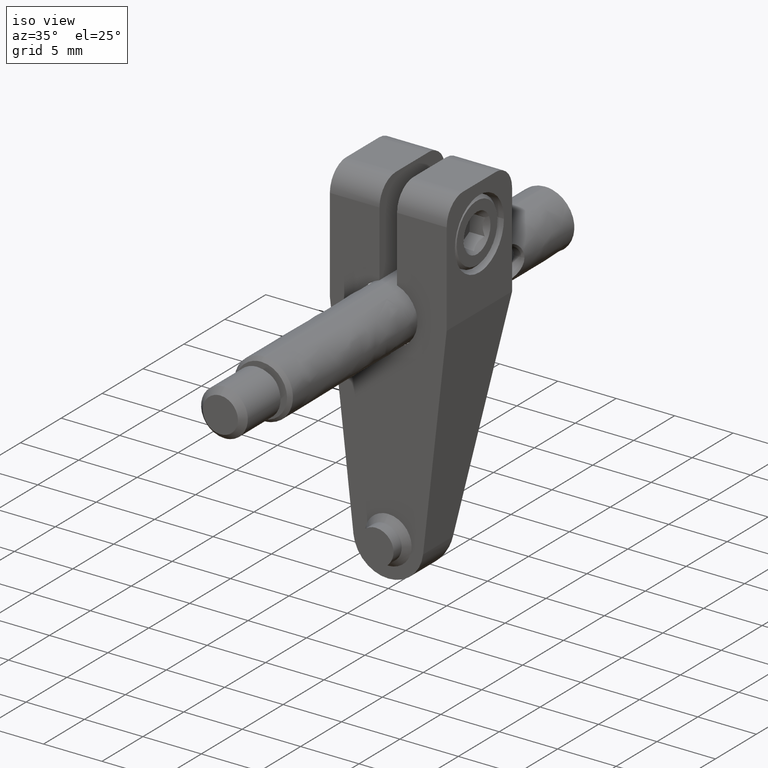
[diagram: clean part render]
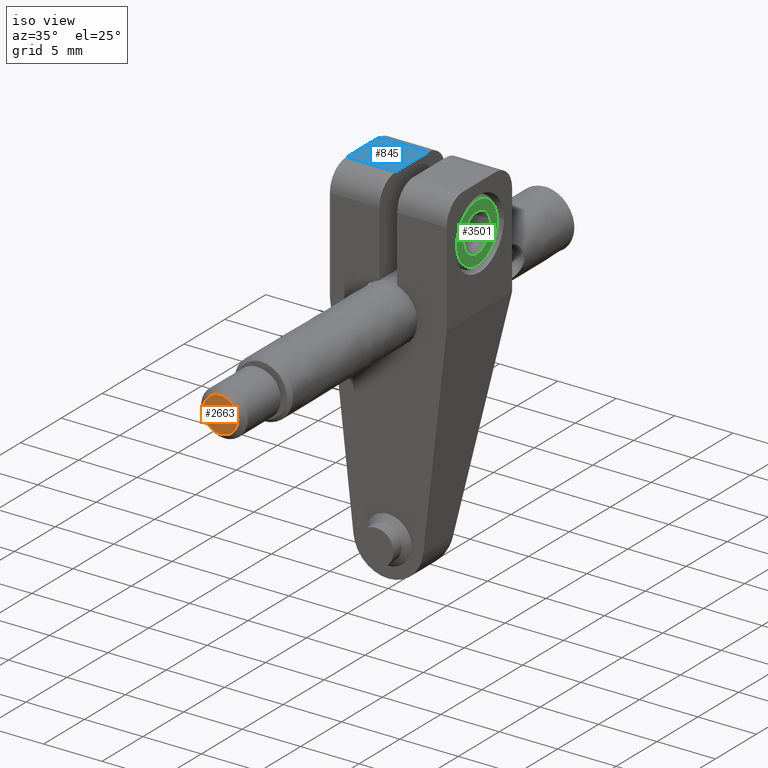
[diagram: same view with three faces highlighted in distinct colors, each labeled with its STEP entity id]
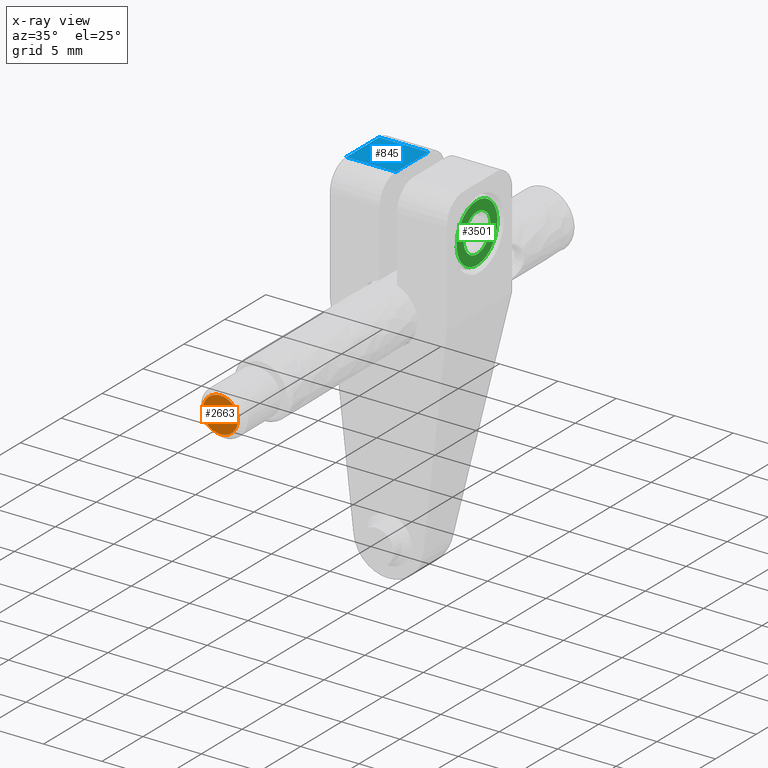
[diagram: x-ray of the same camera — body ghosted, the three highlighted faces saturated]
A machine part, iso view with three faces highlighted in distinct colors.
The next image is the same camera in x-ray (body ghosted, the three faces saturated) — at least one of them is partly hidden behind the body in this view.
Their STEP definitions:

[orange] entity #2663 — the highlighted face is a freeform B-spline surface patch.
#437 = CARTESIAN_POINT ( 'NONE',  ( 2.436809988642660241E-16, -20.52094755358395162, 1.500000000000000000 ) ) ;
#649 = CARTESIAN_POINT ( 'NONE',  ( 1.801199999999999912, -20.52094755358395162, -1.801199999999999912 ) ) ;
#1273 =( BOUNDED_CURVE ( )  B_SPLINE_CURVE ( 2, ( #6511, #2603, #5407, #2669, #4764 ),
 .UNSPECIFIED., .F., .F. ) 
 B_SPLINE_CURVE_WITH_KNOTS ( ( 3, 2, 3 ),
 ( 0.000000000000000000, 0.5000000000000008882, 1.000000000000000000 ),
 .UNSPECIFIED. ) 
 CURVE ( )  GEOMETRIC_REPRESENTATION_ITEM ( )  RATIONAL_B_SPLINE_CURVE ( ( 1.000000000000001998, 0.7071067811865457964, 1.000000000000000000, 0.7071067811865501263, 0.9999999999999978906 ) ) 
 REPRESENTATION_ITEM ( '' )  );
#1349 = ORIENTED_EDGE ( 'NONE', *, *, #7058, .F. ) ;
#2072 = CARTESIAN_POINT ( 'NONE',  ( -6.112043250755600184E-16, -20.52094755358395162, -1.500000000000000000 ) ) ;
#2073 = ORIENTED_EDGE ( 'NONE', *, *, #3592, .F. ) ;
#2111 = CARTESIAN_POINT ( 'NONE',  ( -1.499999999999998668, -20.52094755358396583, -2.144106034113575115E-15 ) ) ;
#2171 = VERTEX_POINT ( 'NONE', #3657 ) ;
#2175 =( BOUNDED_CURVE ( )  B_SPLINE_CURVE ( 2, ( #2718, #3221, #2111, #4913, #437 ),
 .UNSPECIFIED., .F., .T. ) 
 B_SPLINE_CURVE_WITH_KNOTS ( ( 3, 2, 3 ),
 ( 0.000000000000000000, 0.5000000000000008882, 1.000000000000000000 ),
 .UNSPECIFIED. ) 
 CURVE ( )  GEOMETRIC_REPRESENTATION_ITEM ( )  RATIONAL_B_SPLINE_CURVE ( ( 1.000000000000001998, 0.7071067811865457964, 1.000000000000000000, 0.7071067811865501263, 0.9999999999999978906 ) ) 
 REPRESENTATION_ITEM ( '' )  );
#2367 = CARTESIAN_POINT ( 'NONE',  ( -1.801199999999999912, -20.52094755358395162, 1.801199999999999912 ) ) ;
#2603 = CARTESIAN_POINT ( 'NONE',  ( 1.500000000000001110, -20.52094755358395872, 1.500000000000010214 ) ) ;
#2663 = ADVANCED_FACE ( 'NONE', ( #5142 ), #6440, .T. ) ;
#2669 = CARTESIAN_POINT ( 'NONE',  ( 1.499999999999996003, -20.52094755358396228, -1.499999999999986233 ) ) ;
#2718 = CARTESIAN_POINT ( 'NONE',  ( -6.112043250755600184E-16, -20.52094755358395162, -1.500000000000000000 ) ) ;
#2996 = EDGE_LOOP ( 'NONE', ( #1349, #2073 ) ) ;
#3221 = CARTESIAN_POINT ( 'NONE',  ( -1.500000000000004219, -20.52094755358395517, -1.500000000000020428 ) ) ;
#3592 = EDGE_CURVE ( 'NONE', #6635, #2171, #2175, .T. ) ;
#3657 = CARTESIAN_POINT ( 'NONE',  ( 2.436809988642660241E-16, -20.52094755358395162, 1.500000000000000000 ) ) ;
#4764 = CARTESIAN_POINT ( 'NONE',  ( -6.112043250755600184E-16, -20.52094755358395162, -1.500000000000000000 ) ) ;
#4913 = CARTESIAN_POINT ( 'NONE',  ( -1.499999999999999334, -20.52094755358395517, 1.499999999999982681 ) ) ;
#5142 = FACE_OUTER_BOUND ( 'NONE', #2996, .T. ) ;
#5179 = CARTESIAN_POINT ( 'NONE',  ( -1.801199999999999912, -20.52094755358395162, -1.801199999999999912 ) ) ;
#5407 = CARTESIAN_POINT ( 'NONE',  ( 1.499999999999995337, -20.52094755358396938, -2.775912716532012135E-15 ) ) ;
#5715 = CARTESIAN_POINT ( 'NONE',  ( 1.801199999999999912, -20.52094755358395162, 1.801199999999999912 ) ) ;
#6440 = B_SPLINE_SURFACE_WITH_KNOTS ( 'NONE', 1, 1, ( 
 ( #649, #5179 ),
 ( #5715, #2367 ) ),
 .UNSPECIFIED., .F., .F., .F.,
 ( 2, 2 ),
 ( 2, 2 ),
 ( -1.801199999999999912, 1.801199999999999912 ),
 ( -1.801199999999999912, 1.801199999999999912 ),
 .UNSPECIFIED. ) ;
#6511 = CARTESIAN_POINT ( 'NONE',  ( 2.436809988642660241E-16, -20.52094755358395162, 1.500000000000000000 ) ) ;
#6635 = VERTEX_POINT ( 'NONE', #2072 ) ;
#7058 = EDGE_CURVE ( 'NONE', #2171, #6635, #1273, .T. ) ;

[blue] entity #845 — the highlighted face is a freeform B-spline surface patch.
#36 = CARTESIAN_POINT ( 'NONE',  ( -0.7500000000000139888, 6.000000000000000000, 10.00000000000000000 ) ) ;
#242 = CARTESIAN_POINT ( 'NONE',  ( -5.426200000000060086, 6.401200000000000223, 10.00000000000000000 ) ) ;
#279 = CARTESIAN_POINT ( 'NONE',  ( -0.3238000000000090250, 1.598799999999999999, 10.00000000000000000 ) ) ;
#304 = EDGE_CURVE ( 'NONE', #5234, #2661, #2074, .T. ) ;
#394 = EDGE_LOOP ( 'NONE', ( #5213, #3172, #982, #6271 ) ) ;
#818 = CARTESIAN_POINT ( 'NONE',  ( -5.426200000000060086, 1.598799999999999999, 10.00000000000000000 ) ) ;
#845 = ADVANCED_FACE ( 'NONE', ( #2887 ), #6049, .T. ) ;
#982 = ORIENTED_EDGE ( 'NONE', *, *, #1148, .T. ) ;
#1070 = CARTESIAN_POINT ( 'NONE',  ( -5.000000000000000000, 2.000000000000000000, 10.00000000000000000 ) ) ;
#1148 = EDGE_CURVE ( 'NONE', #4755, #2661, #4831, .T. ) ;
#1328 = CARTESIAN_POINT ( 'NONE',  ( -0.7500000000000139888, 2.000000000000000000, 10.00000000000000000 ) ) ;
#1449 = VERTEX_POINT ( 'NONE', #3756 ) ;
#1902 = CARTESIAN_POINT ( 'NONE',  ( -0.7500000000000139888, 2.000000000000000000, 10.00000000000000000 ) ) ;
#2048 = CARTESIAN_POINT ( 'NONE',  ( -5.000000000000000000, 2.000000000000000000, 10.00000000000000000 ) ) ;
#2074 = B_SPLINE_CURVE_WITH_KNOTS ( 'NONE', 1,
 ( #6782, #1328 ),
 .UNSPECIFIED., .F., .F.,
 ( 2, 2 ),
 ( 0.000000000000000000, 1.000000000000000000 ),
 .UNSPECIFIED. ) ;
#2244 = CARTESIAN_POINT ( 'NONE',  ( -5.000000000000000000, 6.000000000000000000, 10.00000000000000000 ) ) ;
#2661 = VERTEX_POINT ( 'NONE', #1902 ) ;
#2740 = CARTESIAN_POINT ( 'NONE',  ( -5.000000000000000000, 6.000000000000000000, 10.00000000000000000 ) ) ;
#2887 = FACE_OUTER_BOUND ( 'NONE', #394, .T. ) ;
#2976 = EDGE_CURVE ( 'NONE', #1449, #5234, #7016, .T. ) ;
#3172 = ORIENTED_EDGE ( 'NONE', *, *, #6020, .F. ) ;
#3756 = CARTESIAN_POINT ( 'NONE',  ( -5.000000000000000000, 6.000000000000000000, 10.00000000000000000 ) ) ;
#4297 = CARTESIAN_POINT ( 'NONE',  ( -0.7500000000000139888, 2.000000000000000000, 10.00000000000000000 ) ) ;
#4755 = VERTEX_POINT ( 'NONE', #2048 ) ;
#4831 = B_SPLINE_CURVE_WITH_KNOTS ( 'NONE', 1,
 ( #1070, #4297 ),
 .UNSPECIFIED., .F., .F.,
 ( 2, 2 ),
 ( 0.000000000000000000, 1.000000000000000000 ),
 .UNSPECIFIED. ) ;
#5165 = CARTESIAN_POINT ( 'NONE',  ( -0.3238000000000090250, 6.401200000000000223, 10.00000000000000000 ) ) ;
#5213 = ORIENTED_EDGE ( 'NONE', *, *, #2976, .F. ) ;
#5234 = VERTEX_POINT ( 'NONE', #36 ) ;
#6020 = EDGE_CURVE ( 'NONE', #4755, #1449, #7099, .T. ) ;
#6049 = B_SPLINE_SURFACE_WITH_KNOTS ( 'NONE', 1, 1, ( 
 ( #279, #818 ),
 ( #5165, #242 ) ),
 .UNSPECIFIED., .F., .F., .F.,
 ( 2, 2 ),
 ( 2, 2 ),
 ( -6.401200000000000223, -1.598799999999999999 ),
 ( 5.323800000000060706, 10.42619999999999969 ),
 .UNSPECIFIED. ) ;
#6271 = ORIENTED_EDGE ( 'NONE', *, *, #304, .F. ) ;
#6558 = CARTESIAN_POINT ( 'NONE',  ( -0.7500000000000139888, 6.000000000000000000, 10.00000000000000000 ) ) ;
#6583 = CARTESIAN_POINT ( 'NONE',  ( -5.000000000000000000, 2.000000000000000000, 10.00000000000000000 ) ) ;
#6782 = CARTESIAN_POINT ( 'NONE',  ( -0.7500000000000139888, 6.000000000000000000, 10.00000000000000000 ) ) ;
#7016 = B_SPLINE_CURVE_WITH_KNOTS ( 'NONE', 1,
 ( #2244, #6558 ),
 .UNSPECIFIED., .F., .F.,
 ( 2, 2 ),
 ( 0.000000000000000000, 1.000000000000000000 ),
 .UNSPECIFIED. ) ;
#7099 = B_SPLINE_CURVE_WITH_KNOTS ( 'NONE', 1,
 ( #6583, #2740 ),
 .UNSPECIFIED., .F., .F.,
 ( 2, 2 ),
 ( 0.000000000000000000, 1.000000000000000000 ),
 .UNSPECIFIED. ) ;

[green] entity #3501 — the highlighted face is a freeform B-spline surface patch.
#9 = CARTESIAN_POINT ( 'NONE',  ( 4.800000000000000711, 3.666826948477658110, 7.610881925276487436 ) ) ;
#24 = CARTESIAN_POINT ( 'NONE',  ( 4.799999999999998934, 5.779940145775683824, 4.243585706670350177 ) ) ;
#35 = EDGE_LOOP ( 'NONE', ( #4209, #65, #1256, #7075 ) ) ;
#46 = CARTESIAN_POINT ( 'NONE',  ( 4.799999999999998046, 5.512175093918890489, 6.651868507934762142 ) ) ;
#65 = ORIENTED_EDGE ( 'NONE', *, *, #1976, .T. ) ;
#81 = CARTESIAN_POINT ( 'NONE',  ( 4.799999999999998934, 5.459749273562041871, 5.229910300414363888 ) ) ;
#108 = CARTESIAN_POINT ( 'NONE',  ( 4.799999999999999822, 2.243582201981664692, 4.220062948948326564 ) ) ;
#205 = CARTESIAN_POINT ( 'NONE',  ( 4.800000000000000711, 5.847551506402488997, 4.315665281229628114 ) ) ;
#241 = CARTESIAN_POINT ( 'NONE',  ( 4.799999999999998934, 3.150051579219033115, 8.372479841574403281 ) ) ;
#311 = CARTESIAN_POINT ( 'NONE',  ( 4.800000000000000711, 6.490926576614874044, 6.213723961470629220 ) ) ;
#363 = VERTEX_POINT ( 'NONE', #5673 ) ;
#512 = CARTESIAN_POINT ( 'NONE',  ( 4.799999999999999822, 3.348137572004296736, 7.512175664440877476 ) ) ;
#514 = CARTESIAN_POINT ( 'NONE',  ( 4.800000000000002487, 5.464811375462288012, 6.744990762922141059 ) ) ;
#540 = CARTESIAN_POINT ( 'NONE',  ( 4.800000000000000711, 1.729838693861910359, 7.102482755801714731 ) ) ;
#546 = CARTESIAN_POINT ( 'NONE',  ( 4.800000000000000711, 4.770089699561821384, 7.459749273571390837 ) ) ;
#614 = CARTESIAN_POINT ( 'NONE',  ( 4.799999999999999822, 2.866676111899140178, 8.228357458905570354 ) ) ;
#666 = CARTESIAN_POINT ( 'NONE',  ( 4.799999999999998934, 3.280179387459824181, 3.790197861615583363 ) ) ;
#744 = CARTESIAN_POINT ( 'NONE',  ( 4.799999999999999822, 5.852952956234660498, 7.681889325233744792 ) ) ;
#759 = CARTESIAN_POINT ( 'NONE',  ( 4.799999999999999822, 4.550008691694685581, 3.540615570293466519 ) ) ;
#781 = CARTESIAN_POINT ( 'NONE',  ( 4.800000000000000711, 5.102482755792268954, 8.270161306137735480 ) ) ;
#796 = CARTESIAN_POINT ( 'NONE',  ( 4.799999999999999822, 4.147732136388508017, 3.504228267131094476 ) ) ;
#836 = EDGE_CURVE ( 'NONE', #6890, #6041, #1594, .T. ) ;
#871 = FACE_OUTER_BOUND ( 'NONE', #6403, .T. ) ;
#891 = CARTESIAN_POINT ( 'NONE',  ( 4.799999999999999822, 6.270161306134498069, 4.897517244178816398 ) ) ;
#976 = CARTESIAN_POINT ( 'NONE',  ( 4.799999999999999822, 1.623318850511945133, -1.296255476573583865 ) ) ;
#1017 = CARTESIAN_POINT ( 'NONE',  ( 4.799999999999999822, 3.255009237077865158, 7.464811375462290677 ) ) ;
#1085 = CARTESIAN_POINT ( 'NONE',  ( 4.799999999999999822, 5.093565976417380625, 4.755620993957524689 ) ) ;
#1101 = CARTESIAN_POINT ( 'NONE',  ( 4.799999999999999822, 5.473840268920144858, 3.969442152061546825 ) ) ;
#1120 = CARTESIAN_POINT ( 'NONE',  ( 4.800000000000001599, 3.743320744678186873, 7.623491530782274594 ) ) ;
#1159 = CARTESIAN_POINT ( 'NONE',  ( 4.799999999999999822, 4.616850752098975441, 7.527434551065571355 ) ) ;
#1173 = CARTESIAN_POINT ( 'NONE',  ( 4.799999999999999822, 3.255009237077865158, 7.464811375462290677 ) ) ;
#1245 = CARTESIAN_POINT ( 'NONE',  ( 4.800000000000002487, 2.535188624537711988, 5.255009237077872264 ) ) ;
#1256 = ORIENTED_EDGE ( 'NONE', *, *, #4524, .T. ) ;
#1296 = CARTESIAN_POINT ( 'NONE',  ( 4.799999999999999822, 3.934467710789055772, 3.497939947974589625 ) ) ;
#1318 = CARTESIAN_POINT ( 'NONE',  ( 4.800000000000000711, 5.713389435842391784, 7.820676003731753312 ) ) ;
#1332 = CARTESIAN_POINT ( 'NONE',  ( 4.799999999999999822, 1.540614429634240112, 5.450003469370403586 ) ) ;
#1352 = CARTESIAN_POINT ( 'NONE',  ( 4.800000000000000711, 5.670900242911393718, 7.859719337125674166 ) ) ;
#1368 = CARTESIAN_POINT ( 'NONE',  ( 4.800000000000000711, 2.603991022989890158, 3.897545364215052377 ) ) ;
#1423 = CARTESIAN_POINT ( 'NONE',  ( 4.800000000000001599, 6.102454635819013262, 4.603991023039521124 ) ) ;
#1581 = CARTESIAN_POINT ( 'NONE',  ( 4.799999999999998934, 1.897545364186432160, 7.396008976968746040 ) ) ;
#1589 = CARTESIAN_POINT ( 'NONE',  ( 4.799999999999998934, 5.610881176466386400, 6.333181031442349784 ) ) ;
#1594 =( BOUNDED_CURVE ( )  B_SPLINE_CURVE ( 2, ( #4043, #5738, #1245 ),
 .UNSPECIFIED., .F., .T. ) 
 B_SPLINE_CURVE_WITH_KNOTS ( ( 3, 3 ),
 ( 0.000000000000000000, 0.5000000000000000000 ),
 .UNSPECIFIED. ) 
 CURVE ( )  GEOMETRIC_REPRESENTATION_ITEM ( )  RATIONAL_B_SPLINE_CURVE ( ( 1.000000000000001998, 0.7071067811865479058, 0.9999999999999978906 ) ) 
 REPRESENTATION_ITEM ( '' )  );
#1653 = CARTESIAN_POINT ( 'NONE',  ( 4.800000000000000711, 1.509073423385639989, 5.786276038527291554 ) ) ;
#1659 = CARTESIAN_POINT ( 'NONE',  ( 4.800000000000001599, 3.794657508555754344, 7.630722877466737053 ) ) ;
#1696 = CARTESIAN_POINT ( 'NONE',  ( 4.800000000000000711, 5.633542128448531194, 6.181729810174081408 ) ) ;
#1812 = CARTESIAN_POINT ( 'NONE',  ( 4.799999999999998046, 3.809427048353410061, 8.492829125674580482 ) ) ;
#1826 = CARTESIAN_POINT ( 'NONE',  ( 4.799999999999998934, 3.638825587700314834, 3.515388805805305328 ) ) ;
#1848 = CARTESIAN_POINT ( 'NONE',  ( 4.800000000000001599, 6.430520861917607967, 5.389782882596210634 ) ) ;
#1976 = EDGE_CURVE ( 'NONE', #6890, #363, #2599, .T. ) ;
#2059 = ORIENTED_EDGE ( 'NONE', *, *, #2634, .T. ) ;
#2185 = CARTESIAN_POINT ( 'NONE',  ( 4.800000000000000711, 1.504228267131962671, 5.852267863603489495 ) ) ;
#2599 = B_SPLINE_CURVE_WITH_KNOTS ( 'NONE', 3,
 ( #1017, #512, #6080, #9, #1120, #1659, #4827, #5401, #3262, #1159, #546, #3842, #6505, #2696, #3337, #3743, #3202, #7042 ),
 .UNSPECIFIED., .F., .F.,
 ( 4, 1, 1, 2, 2, 2, 1, 1, 2, 2, 4 ),
 ( 0.000000000000000000, 0.06250000000000106859, 0.09375000000000167921, 0.1093750000000018457, 0.1250000000000019984, 0.2500000000000028866, 0.3125000000000031641, 0.3437500000000032196, 0.3593750000000031086, 0.3750000000000029421, 0.5000000000000000000 ),
 .UNSPECIFIED. ) ;
#2634 = EDGE_CURVE ( 'NONE', #3871, #5971, #4447, .T. ) ;
#2657 = CARTESIAN_POINT ( 'NONE',  ( 4.799999999999998934, 2.725000608290086834, 8.156302487672286716 ) ) ;
#2689 = CARTESIAN_POINT ( 'NONE',  ( 4.799999999999998934, 2.220059854225501006, 7.756414293330267107 ) ) ;
#2696 = CARTESIAN_POINT ( 'NONE',  ( 4.800000000000000711, 5.044853460058654093, 7.268798261620887935 ) ) ;
#2698 = CARTESIAN_POINT ( 'NONE',  ( 4.799999999999999822, 5.268798261618377943, 4.955146539934976779 ) ) ;
#2724 = CARTESIAN_POINT ( 'NONE',  ( 4.799999999999998934, 1.497939947977083186, 6.065532289188142023 ) ) ;
#2902 = B_SPLINE_CURVE_WITH_KNOTS ( 'NONE', 3,
 ( #6734, #3391, #1101, #4942, #24, #4115, #205, #4042, #1423, #891, #1848, #3032, #3502, #3538, #6344, #4622, #311, #4693, #6773, #4657, #5271, #744, #3573, #1318, #4586, #1352, #3610, #781, #6238, #2999, #4151, #5237, #3463, #1812, #5164, #5201, #241, #5809 ),
 .UNSPECIFIED., .F., .F.,
 ( 4, 1, 1, 1, 2, 2, 2, 1, 1, 1, 2, 2, 2, 1, 1, 1, 2, 2, 2, 1, 1, 1, 2, 2, 4 ),
 ( 0.000000000000000000, 0.06250000000000154043, 0.09375000000000230371, 0.1093750000000024425, 0.1171875000000025119, 0.1250000000000025813, 0.2500000000000052180, 0.3125000000000064948, 0.3437500000000069944, 0.3593750000000070499, 0.3671875000000068834, 0.3750000000000067168, 0.5000000000000062172, 0.5625000000000057732, 0.5937500000000053291, 0.6093750000000052180, 0.6171875000000051070, 0.6250000000000049960, 0.7500000000000027756, 0.8125000000000016653, 0.8437500000000011102, 0.8593750000000008882, 0.8671875000000007772, 0.8750000000000005551, 1.000000000000000000 ),
 .UNSPECIFIED. ) ;
#2940 = CARTESIAN_POINT ( 'NONE',  ( 4.799999999999998934, 1.627541753731476470, 5.150019034943407625 ) ) ;
#2977 = CARTESIAN_POINT ( 'NONE',  ( 4.799999999999999822, 5.133323888100860266, 3.771642541094434975 ) ) ;
#2999 = CARTESIAN_POINT ( 'NONE',  ( 4.799999999999998934, 4.361174412277525114, 8.484611194191694850 ) ) ;
#3032 = CARTESIAN_POINT ( 'NONE',  ( 4.799999999999999822, 6.484611194194519257, 5.638825587747785306 ) ) ;
#3157 = CARTESIAN_POINT ( 'NONE',  ( 4.799999999999999822, 6.376681149488049982, 13.29625547657360052 ) ) ;
#3202 = CARTESIAN_POINT ( 'NONE',  ( 4.799999999999999822, 5.370083938549086611, 6.931235272896912214 ) ) ;
#3257 = CARTESIAN_POINT ( 'NONE',  ( 4.799999999999998934, 2.140280662875043038, 7.670900242912892963 ) ) ;
#3262 = CARTESIAN_POINT ( 'NONE',  ( 4.800000000000001599, 4.293268604897048313, 7.632829129265359391 ) ) ;
#3265 = CARTESIAN_POINT ( 'NONE',  ( 4.800000000000000711, 5.657387720460715030, 5.927610920165176545 ) ) ;
#3307 = VERTEX_POINT ( 'NONE', #5040 ) ;
#3337 = CARTESIAN_POINT ( 'NONE',  ( 4.800000000000000711, 5.068158255660738298, 7.249160382644704193 ) ) ;
#3377 = CARTESIAN_POINT ( 'NONE',  ( 4.800000000000001599, 5.527434551060225409, 5.383149247887422995 ) ) ;
#3384 = CARTESIAN_POINT ( 'NONE',  ( 4.799999999999999822, 4.744990762922130401, 4.535188624537719981 ) ) ;
#3391 = CARTESIAN_POINT ( 'NONE',  ( 4.799999999999998934, 5.274999391711459928, 3.843697512328516197 ) ) ;
#3463 = CARTESIAN_POINT ( 'NONE',  ( 4.800000000000001599, 3.852267863605657094, 8.495771732868128367 ) ) ;
#3479 = CARTESIAN_POINT ( 'NONE',  ( 4.800000000000000711, 1.843692934775947201, 4.725004650377038651 ) ) ;
#3501 = ADVANCED_FACE ( 'NONE', ( #5790, #871 ), #3859, .T. ) ;
#3502 = CARTESIAN_POINT ( 'NONE',  ( 4.799999999999999822, 6.502060052025278480, 5.934467710824667286 ) ) ;
#3518 = CARTESIAN_POINT ( 'NONE',  ( 4.799999999999999822, 2.897517244233060563, 3.729838693865731525 ) ) ;
#3538 = CARTESIAN_POINT ( 'NONE',  ( 4.800000000000000711, 6.499370348484254656, 6.083561847463114347 ) ) ;
#3554 = CARTESIAN_POINT ( 'NONE',  ( 4.799999999999998046, 2.147047043755767159, 4.318110674773535607 ) ) ;
#3573 = CARTESIAN_POINT ( 'NONE',  ( 4.799999999999999822, 5.756417798012761544, 7.779937051055926034 ) ) ;
#3610 = CARTESIAN_POINT ( 'NONE',  ( 4.799999999999998934, 5.396008976992655803, 8.102454635802343930 ) ) ;
#3743 = CARTESIAN_POINT ( 'NONE',  ( 4.800000000000000711, 5.244369849689236140, 7.093574061047116075 ) ) ;
#3769 = CARTESIAN_POINT ( 'NONE',  ( 4.800000000000000711, 1.569479138084192815, 6.610217117413550447 ) ) ;
#3778 = CARTESIAN_POINT ( 'NONE',  ( 4.800000000000001599, 4.931271892865328965, 4.629929642691396730 ) ) ;
#3801 = CARTESIAN_POINT ( 'NONE',  ( 4.799999999999999822, 2.526159731082560089, 8.030557847939837401 ) ) ;
#3810 = CARTESIAN_POINT ( 'NONE',  ( 4.799999999999999822, 5.632829129276031743, 5.706731395130201001 ) ) ;
#3842 = CARTESIAN_POINT ( 'NONE',  ( 4.799999999999999822, 4.933902250860098704, 7.354554136804846820 ) ) ;
#3859 = B_SPLINE_SURFACE_WITH_KNOTS ( 'NONE', 1, 1, ( 
 ( #4848, #3157 ),
 ( #976, #6561 ) ),
 .UNSPECIFIED., .F., .F., .F.,
 ( 2, 2 ),
 ( 2, 2 ),
 ( -5.426046316875750009, 5.426046316875760667 ),
 ( -5.426046316875760667, 5.426046316875750009 ),
 .UNSPECIFIED. ) ;
#3871 = VERTEX_POINT ( 'NONE', #4806 ) ;
#3882 = CARTESIAN_POINT ( 'NONE',  ( 4.799999999999998934, 5.630722610034553099, 6.205345341415685390 ) ) ;
#3955 = ORIENTED_EDGE ( 'NONE', *, *, #6928, .T. ) ;
#4020 = CARTESIAN_POINT ( 'NONE',  ( 4.799999999999998934, 4.083561847442336301, 3.500629651515678731 ) ) ;
#4042 = CARTESIAN_POINT ( 'NONE',  ( 4.799999999999999822, 5.859719337124622562, 4.329099757086604328 ) ) ;
#4043 = CARTESIAN_POINT ( 'NONE',  ( 4.799999999999999822, 3.255009237077865158, 7.464811375462290677 ) ) ;
#4115 = CARTESIAN_POINT ( 'NONE',  ( 4.799999999999998934, 5.820677866879357509, 4.286612674119890443 ) ) ;
#4151 = CARTESIAN_POINT ( 'NONE',  ( 4.799999999999998934, 4.065532289194322857, 8.502060052023157510 ) ) ;
#4209 = ORIENTED_EDGE ( 'NONE', *, *, #836, .F. ) ;
#4252 = CARTESIAN_POINT ( 'NONE',  ( 4.799999999999999822, 5.133323888100860266, 3.771642541094434975 ) ) ;
#4447 = B_SPLINE_CURVE_WITH_KNOTS ( 'NONE', 3,
 ( #614, #2657, #3801, #7036, #2689, #5426, #6498, #3257, #1581, #540, #3769, #5459, #2724, #4919, #2185, #6567, #1653, #1332, #2940, #3479, #5029, #3554, #108, #5066, #6675, #6290, #1368, #3518, #5678, #1826, #1296, #4020, #796, #6216, #4598, #759, #4486, #2977 ),
 .UNSPECIFIED., .F., .F.,
 ( 4, 1, 1, 1, 2, 2, 2, 1, 1, 1, 2, 2, 2, 1, 1, 1, 2, 2, 2, 1, 1, 1, 2, 2, 4 ),
 ( 0.000000000000000000, 0.06250000000000228983, 0.09375000000000344169, 0.1093750000000040801, 0.1171875000000043854, 0.1250000000000047184, 0.2500000000000076050, 0.3125000000000091038, 0.3437500000000099920, 0.3593750000000102696, 0.3671875000000102696, 0.3750000000000102696, 0.5000000000000083267, 0.5625000000000073275, 0.5937500000000067724, 0.6093750000000064393, 0.6171875000000064393, 0.6250000000000063283, 0.7500000000000049960, 0.8125000000000043299, 0.8437500000000039968, 0.8593750000000038858, 0.8671875000000035527, 0.8750000000000033307, 1.000000000000000000 ),
 .UNSPECIFIED. ) ;
#4459 = CARTESIAN_POINT ( 'NONE',  ( 4.799999999999999822, 4.744990762922130401, 4.535188624537719981 ) ) ;
#4467 = CARTESIAN_POINT ( 'NONE',  ( 4.800000000000002487, 2.535188624537711988, 5.255009237077872264 ) ) ;
#4486 = CARTESIAN_POINT ( 'NONE',  ( 4.800000000000000711, 4.849948420783338321, 3.627520158426823293 ) ) ;
#4524 = EDGE_CURVE ( 'NONE', #363, #3307, #5811, .T. ) ;
#4586 = CARTESIAN_POINT ( 'NONE',  ( 4.800000000000001599, 5.684335827394628282, 7.847550527460530390 ) ) ;
#4598 = CARTESIAN_POINT ( 'NONE',  ( 4.800000000000000711, 4.213723201406152086, 3.509073352094450371 ) ) ;
#4622 = CARTESIAN_POINT ( 'NONE',  ( 4.800000000000000711, 6.492829125674973945, 6.190572951650101352 ) ) ;
#4657 = CARTESIAN_POINT ( 'NONE',  ( 4.800000000000000711, 6.156307065216767072, 7.274995349628516017 ) ) ;
#4693 = CARTESIAN_POINT ( 'NONE',  ( 4.799999999999997158, 6.459385570357613737, 6.549996530663263705 ) ) ;
#4806 = CARTESIAN_POINT ( 'NONE',  ( 4.799999999999999822, 2.866676111899140178, 8.228357458905570354 ) ) ;
#4827 = CARTESIAN_POINT ( 'NONE',  ( 4.800000000000000711, 3.818270189824775507, 7.633542128449140485 ) ) ;
#4848 = CARTESIAN_POINT ( 'NONE',  ( 4.799999999999999822, -3.296255476573590304, 8.376681149488048206 ) ) ;
#4860 = CARTESIAN_POINT ( 'NONE',  ( 4.799999999999999822, 5.303850011109675577, 4.999099417302388382 ) ) ;
#4919 = CARTESIAN_POINT ( 'NONE',  ( 4.799999999999998934, 1.500629651517125351, 5.916438152544369444 ) ) ;
#4942 = CARTESIAN_POINT ( 'NONE',  ( 4.799999999999998934, 5.681894630467614782, 4.147053051793512246 ) ) ;
#5011 =( BOUNDED_CURVE ( )  B_SPLINE_CURVE ( 2, ( #4467, #666, #3384 ),
 .UNSPECIFIED., .F., .T. ) 
 B_SPLINE_CURVE_WITH_KNOTS ( ( 3, 3 ),
 ( 0.5000000000000000000, 1.000000000000000000 ),
 .UNSPECIFIED. ) 
 CURVE ( )  GEOMETRIC_REPRESENTATION_ITEM ( )  RATIONAL_B_SPLINE_CURVE ( ( 1.000000000000002220, 0.7071067811865479058, 0.9999999999999980016 ) ) 
 REPRESENTATION_ITEM ( '' )  );
#5029 = CARTESIAN_POINT ( 'NONE',  ( 4.799999999999998934, 1.969434141344560185, 4.526166804734721438 ) ) ;
#5040 = CARTESIAN_POINT ( 'NONE',  ( 4.799999999999999822, 4.744990762922130401, 4.535188624537719981 ) ) ;
#5066 = CARTESIAN_POINT ( 'NONE',  ( 4.799999999999999822, 2.286610564154250902, 4.179323996270817965 ) ) ;
#5164 = CARTESIAN_POINT ( 'NONE',  ( 4.799999999999998934, 3.786276798593701365, 8.490926647905487457 ) ) ;
#5201 = CARTESIAN_POINT ( 'NONE',  ( 4.799999999999999822, 3.449991308307689852, 8.459384429707759168 ) ) ;
#5237 = CARTESIAN_POINT ( 'NONE',  ( 4.799999999999998046, 3.916438152547968343, 8.499370348483013871 ) ) ;
#5271 = CARTESIAN_POINT ( 'NONE',  ( 4.799999999999999822, 6.030565858642683352, 7.473833195274981023 ) ) ;
#5401 = CARTESIAN_POINT ( 'NONE',  ( 4.800000000000001599, 4.072389079844104032, 7.657387720455893998 ) ) ;
#5426 = CARTESIAN_POINT ( 'NONE',  ( 4.800000000000000711, 2.179322133121357474, 7.713387325880483480 ) ) ;
#5459 = CARTESIAN_POINT ( 'NONE',  ( 4.800000000000001599, 1.515388805808633110, 6.361174412269281930 ) ) ;
#5576 = CARTESIAN_POINT ( 'NONE',  ( 4.800000000000000711, 5.249161393223410244, 4.931842888883433140 ) ) ;
#5612 = EDGE_CURVE ( 'NONE', #6041, #3307, #5011, .T. ) ;
#5673 = CARTESIAN_POINT ( 'NONE',  ( 4.800000000000002487, 5.464811375462288012, 6.744990762922141059 ) ) ;
#5678 = CARTESIAN_POINT ( 'NONE',  ( 4.800000000000000711, 3.389782882569083000, 3.569479138082295222 ) ) ;
#5738 = CARTESIAN_POINT ( 'NONE',  ( 4.800000000000000711, 1.790197861615583141, 6.719820612540170046 ) ) ;
#5790 = FACE_BOUND ( 'NONE', #35, .T. ) ;
#5809 = CARTESIAN_POINT ( 'NONE',  ( 4.799999999999999822, 2.866676111899140178, 8.228357458905570354 ) ) ;
#5811 = B_SPLINE_CURVE_WITH_KNOTS ( 'NONE', 3,
 ( #514, #46, #6508, #1589, #6010, #3882, #1696, #3265, #3810, #3377, #81, #6083, #4860, #2698, #5576, #1085, #3778, #4459 ),
 .UNSPECIFIED., .F., .F.,
 ( 4, 1, 1, 2, 2, 2, 1, 1, 2, 2, 4 ),
 ( 0.5000000000000000000, 0.5625000000000000000, 0.5937499999999996669, 0.6093749999999996669, 0.6249999999999997780, 0.7499999999999988898, 0.8124999999999985567, 0.8437499999999983347, 0.8593749999999982236, 0.8749999999999980016, 1.000000000000000000 ),
 .UNSPECIFIED. ) ;
#5971 = VERTEX_POINT ( 'NONE', #4252 ) ;
#6010 = CARTESIAN_POINT ( 'NONE',  ( 4.800000000000000711, 5.623491049404346853, 6.256684385270395943 ) ) ;
#6041 = VERTEX_POINT ( 'NONE', #7086 ) ;
#6080 = CARTESIAN_POINT ( 'NONE',  ( 4.799999999999998934, 3.491920871320527198, 7.569121414076037446 ) ) ;
#6083 = CARTESIAN_POINT ( 'NONE',  ( 4.799999999999999822, 5.354554136797832875, 5.066097749122043581 ) ) ;
#6216 = CARTESIAN_POINT ( 'NONE',  ( 4.800000000000000711, 4.190572951643523503, 3.507170874325013621 ) ) ;
#6238 = CARTESIAN_POINT ( 'NONE',  ( 4.800000000000000711, 4.610217117418256905, 8.430520861915997699 ) ) ;
#6290 = CARTESIAN_POINT ( 'NONE',  ( 4.800000000000001599, 2.329099757089700518, 4.140280662873264461 ) ) ;
#6344 = CARTESIAN_POINT ( 'NONE',  ( 4.800000000000000711, 6.495771732868869108, 6.147732136401020675 ) ) ;
#6403 = EDGE_LOOP ( 'NONE', ( #2059, #3955 ) ) ;
#6498 = CARTESIAN_POINT ( 'NONE',  ( 4.799999999999998934, 2.152448493597888479, 7.684334718770576167 ) ) ;
#6505 = CARTESIAN_POINT ( 'NONE',  ( 4.800000000000001599, 5.000900582686136353, 7.303850011114188412 ) ) ;
#6508 = CARTESIAN_POINT ( 'NONE',  ( 4.799999999999999822, 5.569120415662571766, 6.508089768572816070 ) ) ;
#6561 = CARTESIAN_POINT ( 'NONE',  ( 4.799999999999999822, 11.29625547657360052, 3.623318850511950018 ) ) ;
#6567 = CARTESIAN_POINT ( 'NONE',  ( 4.800000000000001599, 1.507170874325463927, 5.809427048352278078 ) ) ;
#6675 = CARTESIAN_POINT ( 'NONE',  ( 4.799999999999999822, 2.315664172603609572, 4.152449472540829412 ) ) ;
#6734 = CARTESIAN_POINT ( 'NONE',  ( 4.799999999999999822, 5.133323888100860266, 3.771642541094434975 ) ) ;
#6773 = CARTESIAN_POINT ( 'NONE',  ( 4.799999999999999822, 6.372458246283117411, 6.849980965045546988 ) ) ;
#6890 = VERTEX_POINT ( 'NONE', #1173 ) ;
#6928 = EDGE_CURVE ( 'NONE', #5971, #3871, #2902, .T. ) ;
#7036 = CARTESIAN_POINT ( 'NONE',  ( 4.799999999999999822, 2.318105369534413374, 7.852946948207536693 ) ) ;
#7042 = CARTESIAN_POINT ( 'NONE',  ( 4.800000000000002487, 5.464811375462288012, 6.744990762922141059 ) ) ;
#7075 = ORIENTED_EDGE ( 'NONE', *, *, #5612, .F. ) ;
#7086 = CARTESIAN_POINT ( 'NONE',  ( 4.800000000000002487, 2.535188624537711988, 5.255009237077872264 ) ) ;